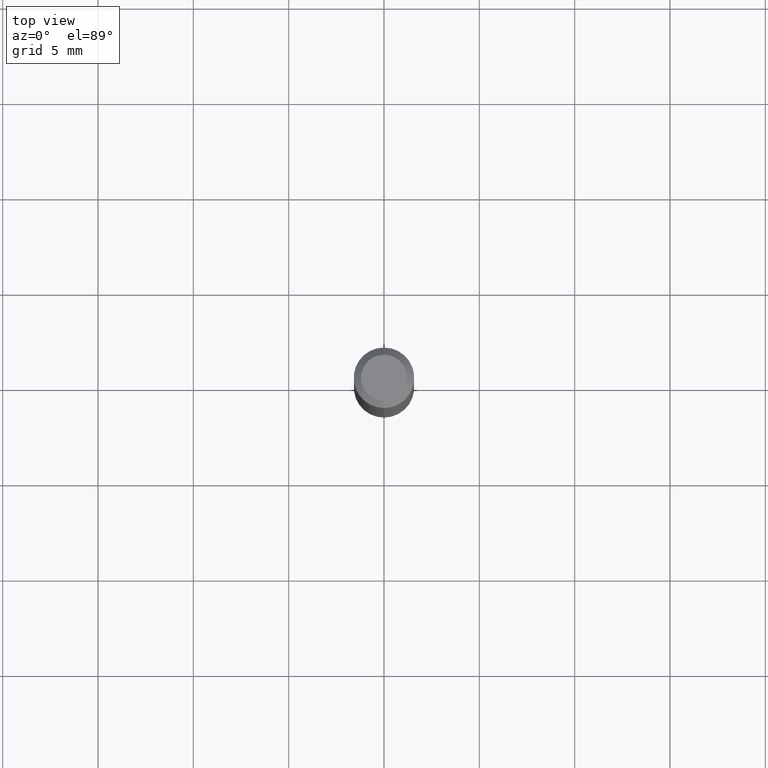
[diagram: clean part render]
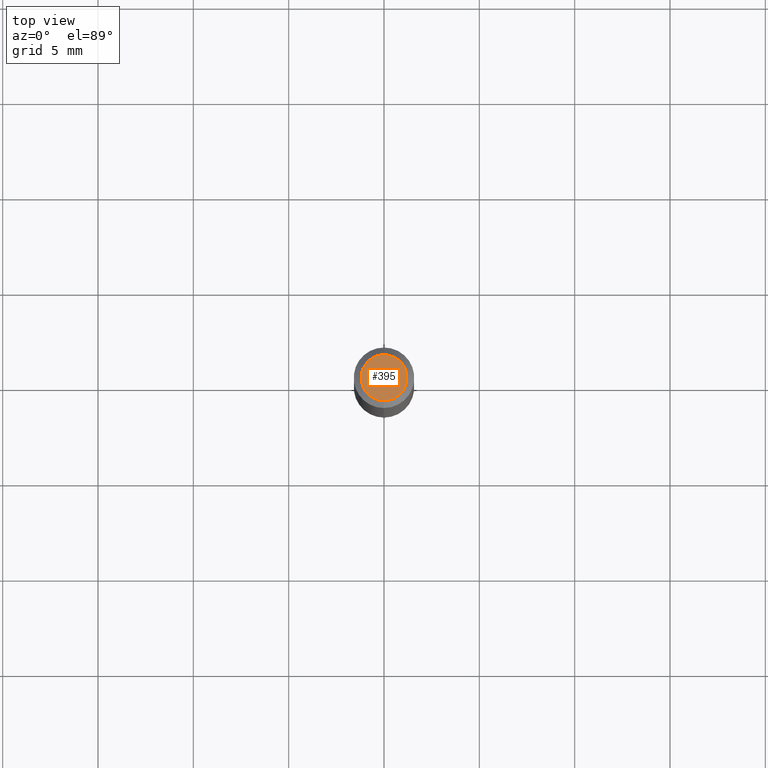
[diagram: same view with one face highlighted and labeled with its STEP entity id]
A machine part, top view. The second image highlights one B-rep face of the part: STEP entity #395.
In plain terms, the highlighted planar face has unit normal (0, -0, -1).
Its self-contained STEP definition (entity closure, byte-faithful):
#5 = CARTESIAN_POINT ( 'NONE',  ( 8.024525879208538939E-45, -1.145728596932945032E-30, -3.281441226851005816E-16 ) ) ;
#14 = DIRECTION ( 'NONE',  ( 2.445427275535626126E-29, -3.491540813097021947E-15, -1.000000000000000000 ) ) ;
#40 = DIRECTION ( 'NONE',  ( -6.982962677686266711E-15, -1.000000000000000000, 3.491540813097022342E-15 ) ) ;
#57 = EDGE_CURVE ( 'NONE', #413, #351, #510, .T. ) ;
#77 = CARTESIAN_POINT ( 'NONE',  ( -3.773273898774340269E-16, -0.04749999999999999362, -1.622959340629920144E-16 ) ) ;
#88 = CIRCLE ( 'NONE', #347, 0.04749999999999999362 ) ;
#114 = ORIENTED_EDGE ( 'NONE', *, *, #57, .T. ) ;
#164 = DIRECTION ( 'NONE',  ( -6.982962677686266711E-15, -1.000000000000000000, 3.491540813097022342E-15 ) ) ;
#180 = FACE_OUTER_BOUND ( 'NONE', #251, .T. ) ;
#185 = CARTESIAN_POINT ( 'NONE',  ( 3.316907271900976096E-16, 0.04749999999999999362, -3.299202499646587840E-16 ) ) ;
#223 = CARTESIAN_POINT ( 'NONE',  ( 3.840629472727447874E-16, 0.04749999999999999362, -4.939923113072091241E-16 ) ) ;
#227 = PLANE ( 'NONE',  #327 ) ;
#251 = EDGE_LOOP ( 'NONE', ( #114, #270 ) ) ;
#270 = ORIENTED_EDGE ( 'NONE', *, *, #329, .T. ) ;
#277 = DIRECTION ( 'NONE',  ( -2.445427275535626406E-29, 3.491540813097021947E-15, 1.000000000000000000 ) ) ;
#327 = AXIS2_PLACEMENT_3D ( 'NONE', #185, #14, #342 ) ;
#329 = EDGE_CURVE ( 'NONE', #351, #413, #88, .T. ) ;
#342 = DIRECTION ( 'NONE',  ( 6.982962677686265922E-15, 1.000000000000000000, -3.491540813097021947E-15 ) ) ;
#347 = AXIS2_PLACEMENT_3D ( 'NONE', #429, #277, #40 ) ;
#351 = VERTEX_POINT ( 'NONE', #77 ) ;
#376 = AXIS2_PLACEMENT_3D ( 'NONE', #5, #476, #164 ) ;
#395 = ADVANCED_FACE ( 'NONE', ( #180 ), #227, .F. ) ;
#413 = VERTEX_POINT ( 'NONE', #223 ) ;
#429 = CARTESIAN_POINT ( 'NONE',  ( 8.024525879208538939E-45, -1.145728596932945032E-30, -3.281441226851005816E-16 ) ) ;
#476 = DIRECTION ( 'NONE',  ( -2.445427275535626406E-29, 3.491540813097021947E-15, 1.000000000000000000 ) ) ;
#510 = CIRCLE ( 'NONE', #376, 0.04749999999999999362 ) ;